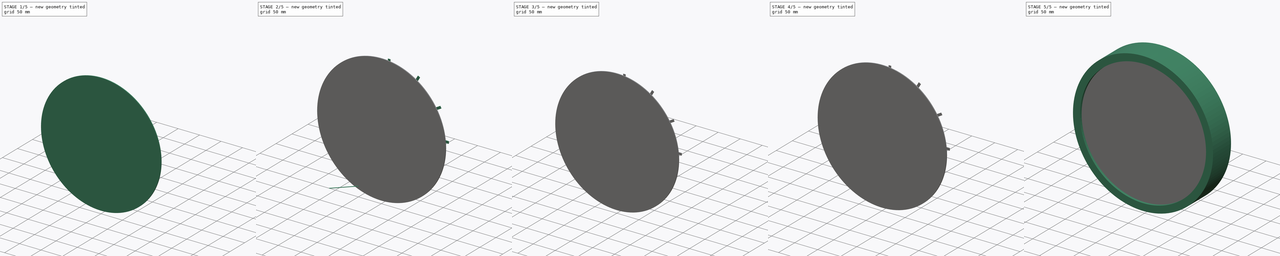
[diagram: build sequence overview — one tinted view per stage of 5, left to right]
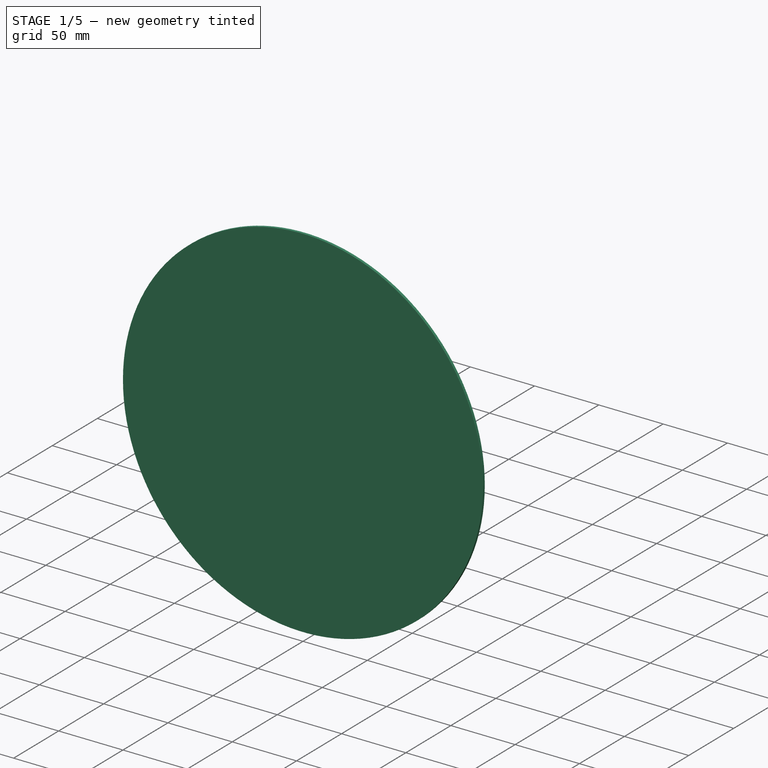
[diagram: stage 1 of 5 — iso view after this stage's code; geometry added in this stage tinted green]
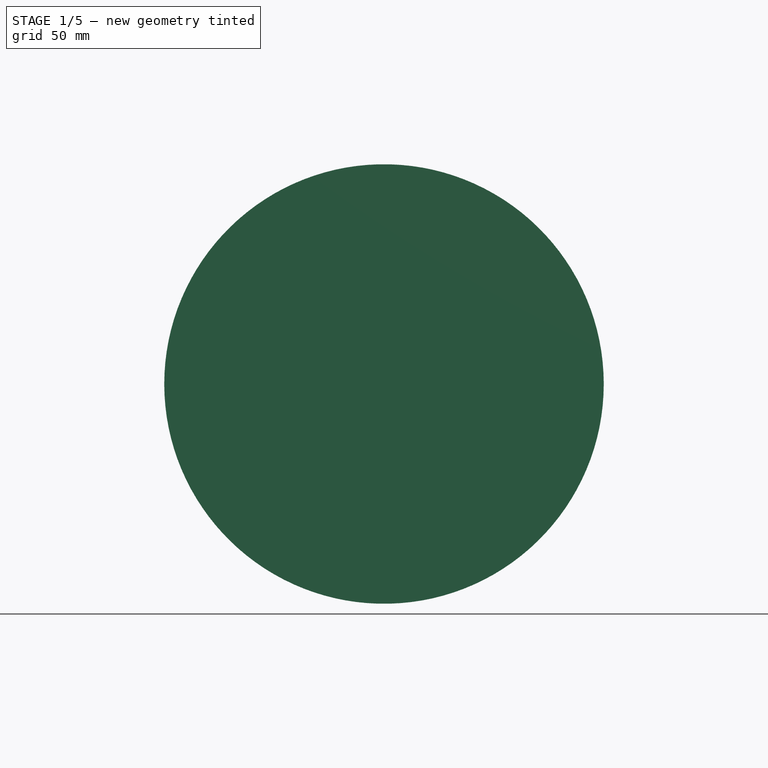
[diagram: stage 1 of 5 — front view after this stage's code; geometry added in this stage tinted green]
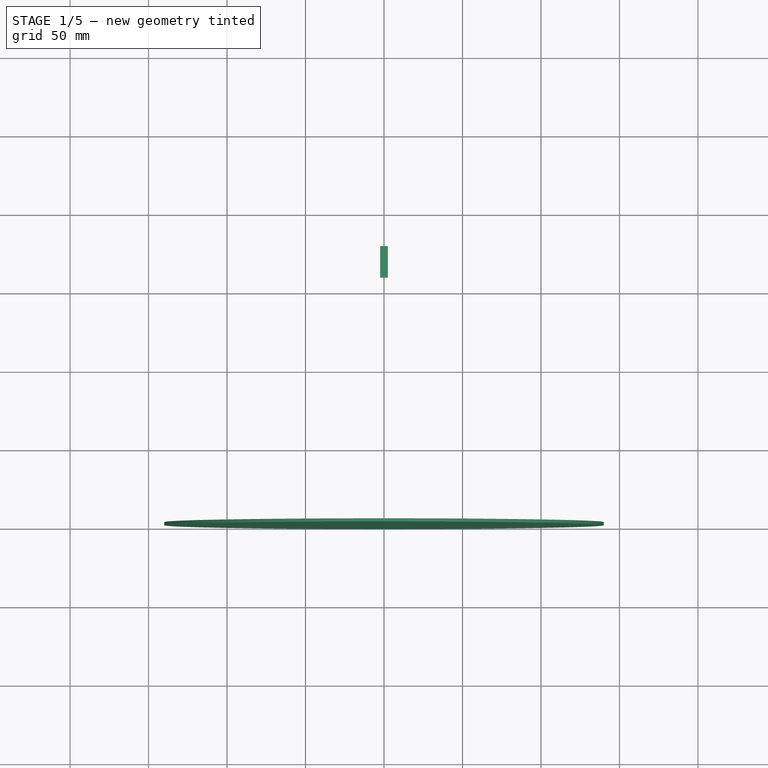
[diagram: stage 1 of 5 — top view after this stage's code; geometry added in this stage tinted green]
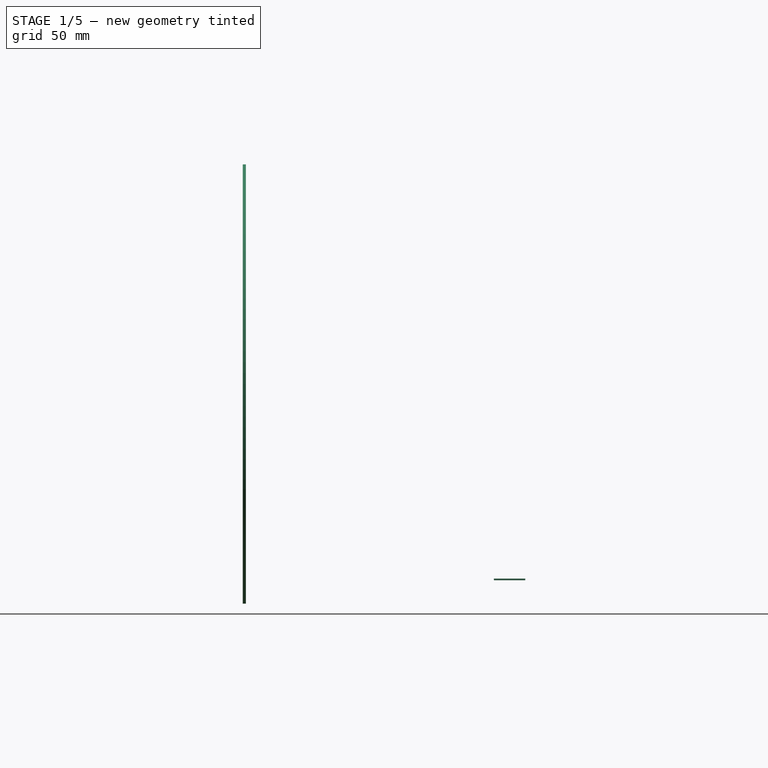
[diagram: stage 1 of 5 — right view after this stage's code; geometry added in this stage tinted green]
FCSTD DOCUMENT  (FreeCAD 1.0R39109 (Git))
Label: clock
License: All rights reserved
LicenseURL: https://en.wikipedia.org/wiki/All_rights_reserved
objects: Part::FeaturePython×13, App::Part×13, Sketcher::SketchObject×6, PartDesign::Body×6, PartDesign::ShapeBinder×5, PartDesign::Pad×5, PartDesign::Revolution×1
note: 53 computed .brp shape members not serialized (recipe doc carries the construction recipe); baked Part::Feature solids carry a one-line shape summary decoded from their .brp

FEATURE [PartDesign::Body] Body003
  AllowCompound = false
  Group = -> [CopyRevolution002,Sketch003,Pad002]
  Origin = -> Origin003
  Placement = pos=(0,0,2) rot=(0,0,1;0rad)
  Tip = -> Pad002
FEATURE [PartDesign::ShapeBinder] CopyRevolution003
  Placement = pos=(0,0,0) rot=(1,0,0;1.5708rad)
  TraceSupport = false
FEATURE [Sketcher::SketchObject] Sketch004
  ArcFitTolerance = 1e-06
  AttachmentSupport = -> [CopyRevolution003]
  FullyConstrained = true
  MakeInternals = false
  MapMode = 5
  Placement = pos=(0,1.1e-14,25) rot=(0,0,1;3.14159rad)
  sketch-geometry (4):
    g0: LineSegment StartX=-2.5 StartY=-110 StartZ=0 EndX=-2.5 EndY=-130 EndZ=0
    g1: LineSegment StartX=-2.5 StartY=-130 StartZ=0 EndX=2.5 EndY=-130 EndZ=0
    g2: LineSegment StartX=2.5 StartY=-130 StartZ=0 EndX=2.5 EndY=-110 EndZ=0
    g3: LineSegment StartX=2.5 StartY=-110 StartZ=0 EndX=-2.5 EndY=-110 EndZ=0
  constraints (11):
    c: Coincident(g0,g1)
    c: Coincident(g1,g2)
    c: Coincident(g2,g3)
    c: Coincident(g3,g0)
    c: Vertical(g0)
    c: Vertical(g2)
    c: Horizontal(g1)
    c: DistanceY(g0,g0) = 20
    c: DistanceX(g3,g3) = 5
    c: Symmetric(g0,g2,g-2)
    c: DistanceY(g0) = -110
FEATURE [PartDesign::Pad] Pad003
  Direction = (0,0,1)
  Length = 1
  Length2 = 10
  Placement = pos=(0,0,0) rot=(1,0,0;1.5708rad)
  Profile = -> Sketch004
  ReferenceAxis = -> Sketch004 [N_Axis]
  Refine = true
  Suppressed = false
  Type = 0
FEATURE [PartDesign::ShapeBinder] CopyRevolution004
  Placement = pos=(0,0,0) rot=(1,0,0;1.5708rad)
  TraceSupport = false
FEATURE [Sketcher::SketchObject] Sketch005
  ArcFitTolerance = 1e-06
  AttachmentSupport = -> [CopyRevolution004]
  FullyConstrained = true
  MakeInternals = false
  MapMode = 5
  Placement = pos=(0,2.11e-14,48) rot=(0,0,1;3.14159rad)
  sketch-geometry (1):
    g0: Circle CenterX=0 CenterY=0 CenterZ=0 NormalX=0 NormalY=0 NormalZ=1 AngleXU=0 Radius=140
  constraints (2):
    c: Coincident(g0,g-1)
    c: Radius(g0) = 140
FEATURE [PartDesign::Pad] Pad004
  Direction = (0,0,1)
  Length = 2
  Length2 = 10
  Placement = pos=(0,0,0) rot=(1,0,0;1.5708rad)
  Profile = -> Sketch005
  ReferenceAxis = -> Sketch005 [N_Axis]
  Refine = true
  Suppressed = false
  Type = 0
FEATURE [App::Part] Part010  label="second1"
  Group = -> [Clone004]
  Origin = -> Origin016
  Placement = pos=(0,0,150) rot=(1,0,0;1.5708rad)
FEATURE [App::Part] Part009  label="second_p"
  Group = -> [Part010]
  Origin = -> Origin015
  Placement = pos=(0,0,150) rot=(0,0,1;0rad)
FEATURE [Part::FeaturePython] Clone005  label="glass"  # Draft clone (typed FeaturePython)
  AttacherType = Attacher::AttachEngine3D
  Fuse = false
  Objects = -> [Body005]
  Placement = pos=(0,0,150) rot=(1,0,0;1.5708rad)
  Scale = (1,1,1)
FEATURE [Part::FeaturePython] Clone011  label="glass_clone"  # Draft clone (typed FeaturePython)
  AttacherType = Attacher::AttachEngine3D
  Fuse = false
  Objects = -> [Part011]
  Scale = (1,1,1)
FEATURE [App::Part] Part012  label="clock"
  Group = -> [Clone006,Clone007,Clone008,Clone009,Clone010,Clone011]
  Origin = -> Origin018
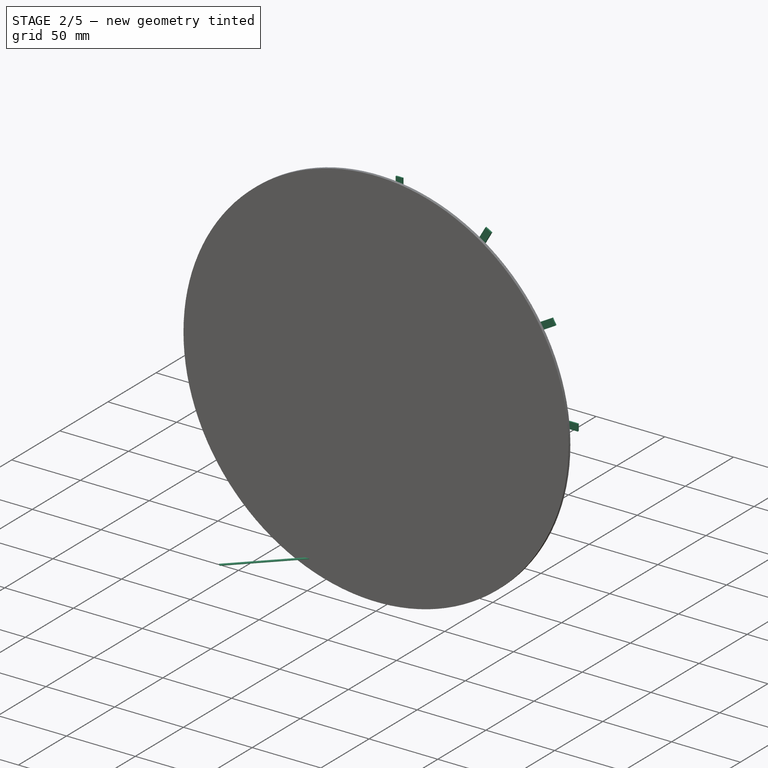
[diagram: stage 2 of 5 — iso view after this stage's code; geometry added in this stage tinted green]
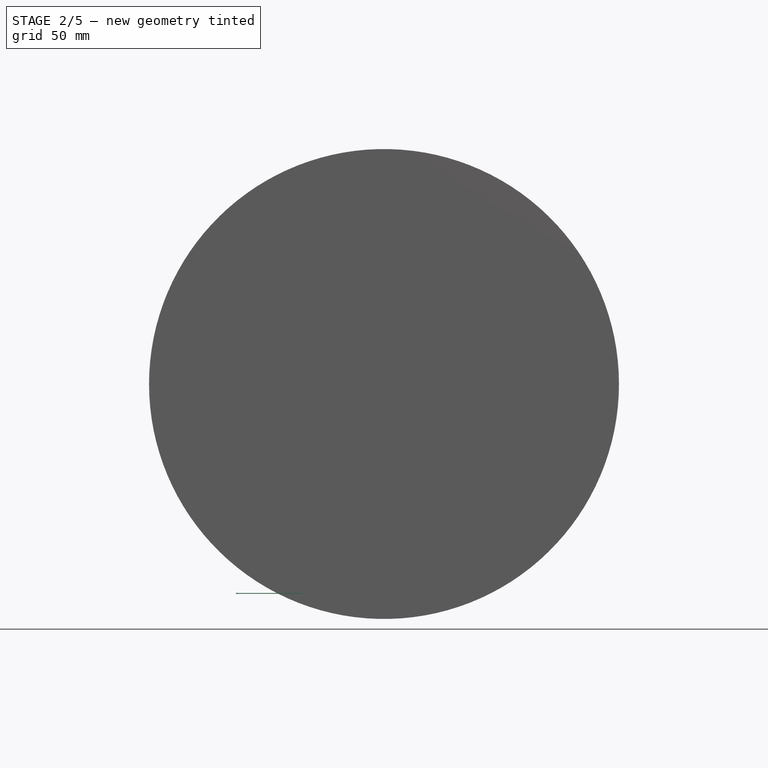
[diagram: stage 2 of 5 — front view after this stage's code; geometry added in this stage tinted green]
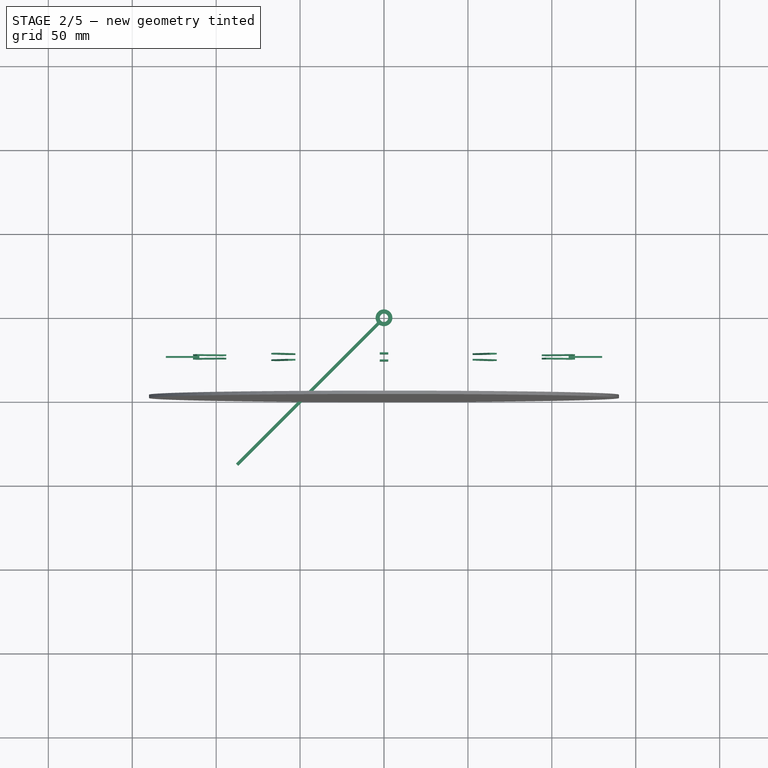
[diagram: stage 2 of 5 — top view after this stage's code; geometry added in this stage tinted green]
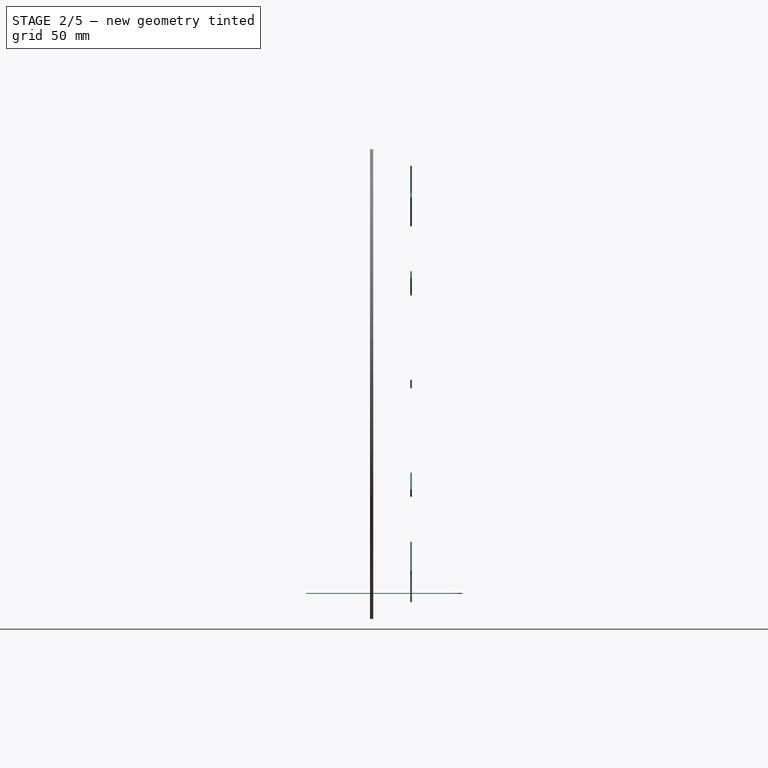
[diagram: stage 2 of 5 — right view after this stage's code; geometry added in this stage tinted green]
FEATURE [PartDesign::Body] Body002
  AllowCompound = false
  Group = -> [CopyRevolution001,Sketch002,Pad001]
  Origin = -> Origin002
  Placement = pos=(0,0,1) rot=(0,0,1;1.0472rad)
  Tip = -> Pad001
FEATURE [PartDesign::ShapeBinder] CopyRevolution002
  Placement = pos=(0,0,0) rot=(1,0,0;1.5708rad)
  TraceSupport = false
FEATURE [Sketcher::SketchObject] Sketch003
  ArcFitTolerance = 1e-06
  AttachmentSupport = -> [CopyRevolution002]
  FullyConstrained = false
  MakeInternals = false
  MapMode = 5
  Placement = pos=(0,1.1e-14,25) rot=(0,0,1;3.14159rad)
  sketch-geometry (6):
    g0: Circle CenterX=0 CenterY=0 CenterZ=0 NormalX=0 NormalY=0 NormalZ=1 AngleXU=0 Radius=2.5
    g1: ArcOfCircle CenterX=0 CenterY=0 CenterZ=0 NormalX=0 NormalY=0 NormalZ=1 AngleXU=0 Radius=5 StartAngle=0.986756 EndAngle=6.86723
    g2: LineSegment StartX=4.17121 StartY=2.75699 StartZ=0 EndX=88.2635 EndY=86.8493 EndZ=0
    g3: LineSegment StartX=88.2635 StartY=86.8493 StartZ=0 EndX=86.8493 EndY=88.2635 EndZ=0
    g4: LineSegment StartX=2.75699 StartY=4.17121 StartZ=0 EndX=86.8493 EndY=88.2635 EndZ=0
    g5: LineSegment [constr] StartX=0 StartY=0 StartZ=0 EndX=87.5564 EndY=87.5564 EndZ=0
  constraints (14):
    c: Coincident(g0,g-1)
    c: Coincident(g0,g1)
    c: Radius(g0) = 2.5
    c: Coincident(g3,g2)
    c: Coincident(g4,g3)
    c: Coincident(g5,g0)
    c: Symmetric(g3,g3,g5)
    c: Angle(g-1,g5) = 0.785398
    c: Perpendicular(g3,g4)
    c: Perpendicular(g2,g3)
    c: Distance(g3) = 2
    c: Coincident(g1,g2)
    c: Coincident(g1,g4)
    c: Radius(g1) = 5
FEATURE [PartDesign::Pad] Pad002
  Direction = (0,0,1)
  Length = 0.5
  Length2 = 10
  Placement = pos=(0,0,0) rot=(1,0,0;1.5708rad)
  Profile = -> Sketch003
  ReferenceAxis = -> Sketch003 [N_Axis]
  Refine = true
  Suppressed = false
  Type = 0
FEATURE [PartDesign::Body] Body004
  AllowCompound = false
  Group = -> [CopyRevolution003,Sketch004,Pad003]
  Origin = -> Origin004
  Tip = -> Pad003
FEATURE [Part::FeaturePython] Array  # Draft array (typed FeaturePython)
  AlwaysSyncPlacement = false
  Angle = 360
  ArrayType = 1
  Axis = (0,0,1)
  Base = -> Body004
  Center = (0,0,0)
  Count = 12
  ExpandArray = false
  Fuse = false
  IntervalAxis = (0,0,0)
  IntervalX = (100,0,0)
  IntervalY = (0,100,0)
  IntervalZ = (0,0,100)
  NumberCircles = 3
  NumberPolar = 12
  NumberX = 2
  NumberY = 2
  NumberZ = 1
  PlacementList = 12 placements: [(0,0,0),(0,0,0),(0,0,0),(0,0,0),(0,0,0),(0,0,0),(0,0,0),(0,0,0),(0,0,0),(0,0,0),(0,0,0),(0,0,0)]
  RadialDistance = 50
  ScaleList = (12) [(1,1,1),(1,1,1),(1,1,1),(1,1,1),(1,1,1),(1,1,1),(1,1,1),(1,1,1),(1,1,1),(1,1,1),(1,1,1),(1,1,1)]
  Symmetry = 1
  TangentialDistance = 25
FEATURE [App::Part] Part007  label="minute1"
  Group = -> [Clone002]
  Origin = -> Origin013
  Placement = pos=(0,0,150) rot=(1,0,0;1.5708rad)
FEATURE [App::Part] Part006  label="minute_p"
  Group = -> [Part007]
  Origin = -> Origin012
  Placement = pos=(0,0,150) rot=(0,0,1;0rad)
FEATURE [Part::FeaturePython] Clone003  label="symbol"  # Draft clone (typed FeaturePython)
  AttacherType = Attacher::AttachEngine3D
  Fuse = false
  Objects = -> [Array]
  Placement = pos=(0,0,150) rot=(1,0,0;1.5708rad)
  Scale = (1,1,1)
FEATURE [Part::FeaturePython] Clone010  label="symbol_clone"  # Draft clone (typed FeaturePython)
  AttacherType = Attacher::AttachEngine3D
  Fuse = false
  Objects = -> [Part008]
  Scale = (1,1,1)
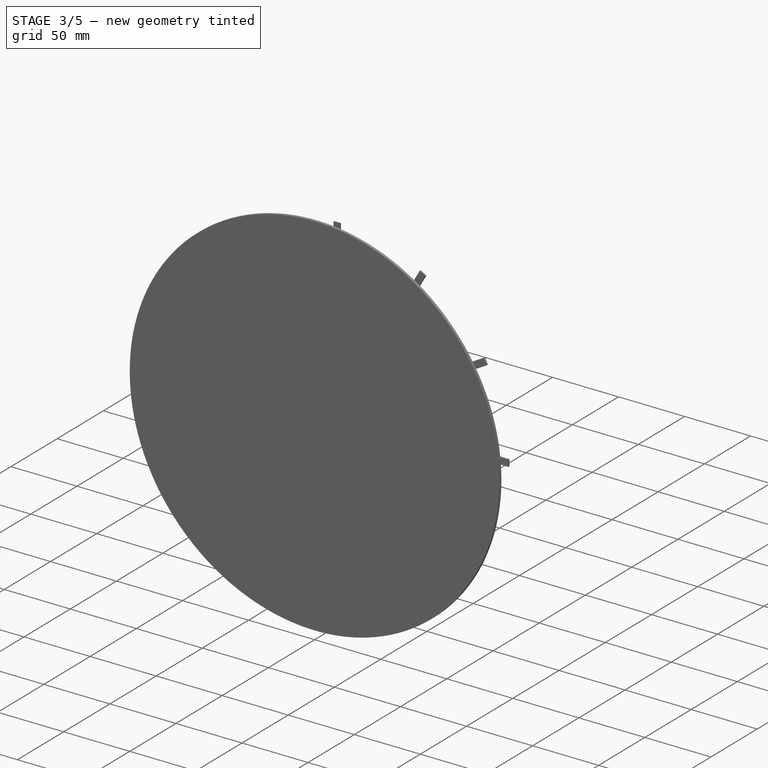
[diagram: stage 3 of 5 — iso view after this stage's code; geometry added in this stage tinted green]
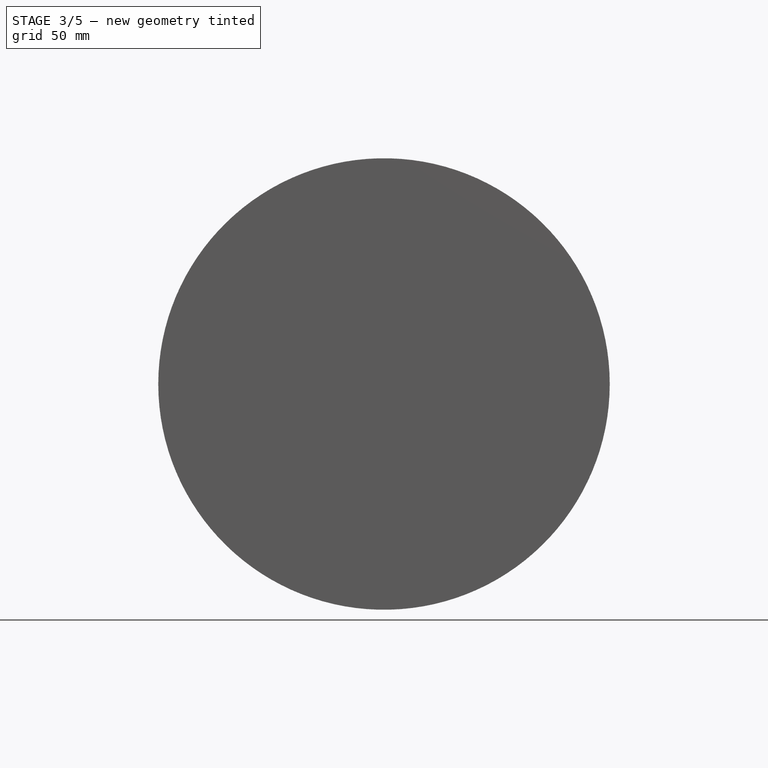
[diagram: stage 3 of 5 — front view after this stage's code; geometry added in this stage tinted green]
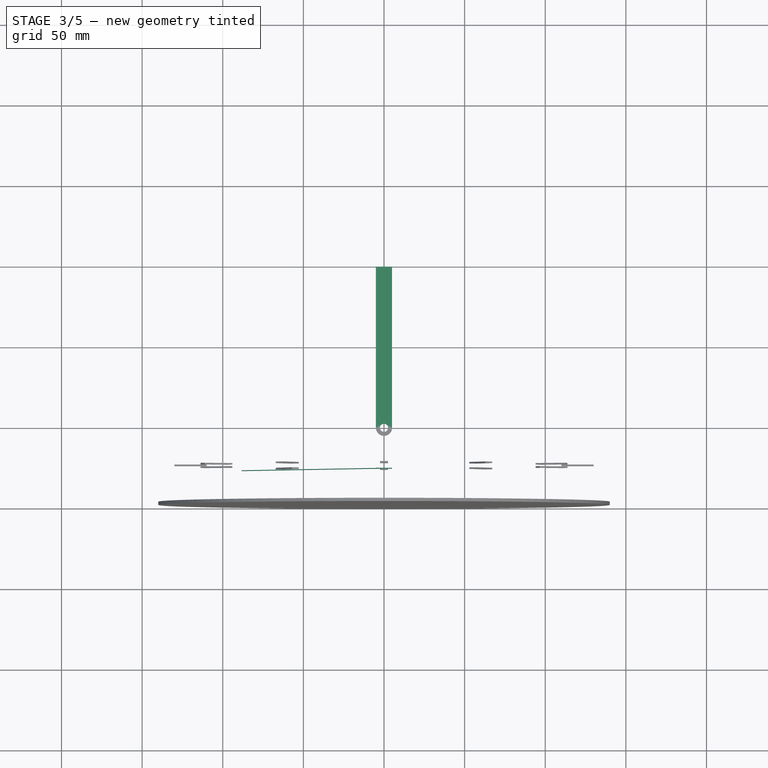
[diagram: stage 3 of 5 — top view after this stage's code; geometry added in this stage tinted green]
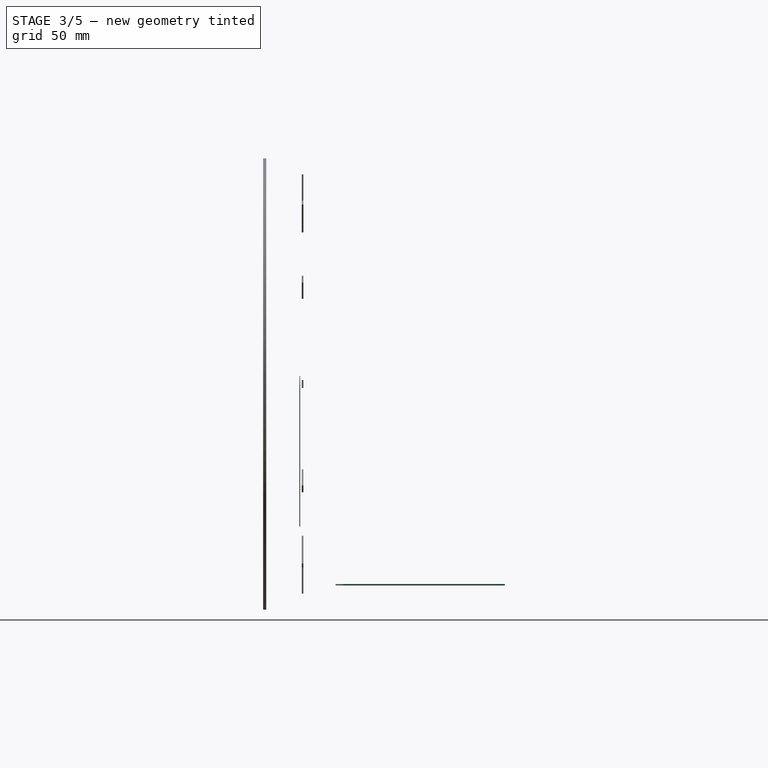
[diagram: stage 3 of 5 — right view after this stage's code; geometry added in this stage tinted green]
FEATURE [PartDesign::Body] Body
  AllowCompound = false
  Group = -> [Sketch,Revolution]
  Origin = -> Origin
  Tip = -> Revolution
FEATURE [PartDesign::ShapeBinder] CopyRevolution
  Placement = pos=(0,0,0) rot=(1,0,0;1.5708rad)
  TraceSupport = false
FEATURE [Sketcher::SketchObject] Sketch001
  ArcFitTolerance = 1e-06
  AttachmentSupport = -> [CopyRevolution]
  FullyConstrained = true
  MakeInternals = false
  MapMode = 5
  Placement = pos=(0,1.1e-14,25) rot=(0,0,1;3.14159rad)
  sketch-geometry (5):
    g0: Circle CenterX=0 CenterY=6e-16 CenterZ=0 NormalX=0 NormalY=0 NormalZ=1 AngleXU=0 Radius=2.5
    g1: ArcOfCircle CenterX=0 CenterY=6e-16 CenterZ=0 NormalX=0 NormalY=0 NormalZ=1 AngleXU=0 Radius=5 StartAngle=1e-16 EndAngle=3.14159
    g2: LineSegment StartX=5 StartY=1.2e-15 StartZ=0 EndX=5 EndY=-100 EndZ=0
    g3: LineSegment StartX=5 StartY=-100 StartZ=0 EndX=-5 EndY=-100 EndZ=0
    g4: LineSegment StartX=-5 StartY=-100 StartZ=0 EndX=-5 EndY=0 EndZ=0
  constraints (13):
    c: Coincident(g1,g0)
    c: Radius(g0) = 2.5
    c: PointOnObject(g0,g-2)
    c: Vertical(g2)
    c: Coincident(g2,g3)
    c: Horizontal(g3)
    c: Coincident(g3,g4)
    c: Vertical(g4)
    c: PointOnObject(g4,g-1)
    c: Tangent(g1,g4) = 1.5708
    c: Tangent(g1,g2) = 1.5708
    c: DistanceX(g3,g3) = 10
    c: DistanceY(g4,g4) = 100
FEATURE [PartDesign::Pad] Pad
  Direction = (0,0,1)
  Length = 1
  Length2 = 10
  Placement = pos=(0,0,0) rot=(1,0,0;1.5708rad)
  Profile = -> Sketch001
  ReferenceAxis = -> Sketch001 [N_Axis]
  Refine = true
  Suppressed = false
  Type = 0
FEATURE [App::Part] Part008  label="symbol_p"
  Group = -> [Clone003]
  Origin = -> Origin014
  Placement = pos=(0,0,150) rot=(0,0,1;0rad)
FEATURE [Part::FeaturePython] Clone004  label="second"  # Draft clone (typed FeaturePython)
  AttacherType = Attacher::AttachEngine3D
  Fuse = false
  Objects = -> [Body003]
  Placement = pos=(0,0,2) rot=(0,0,1;0rad)
  Scale = (1,1,1)
FEATURE [Part::FeaturePython] Clone009  label="second_clone"  # Draft clone (typed FeaturePython)
  AttacherType = Attacher::AttachEngine3D
  Fuse = false
  Objects = -> [Part009]
  Scale = (1,1,1)
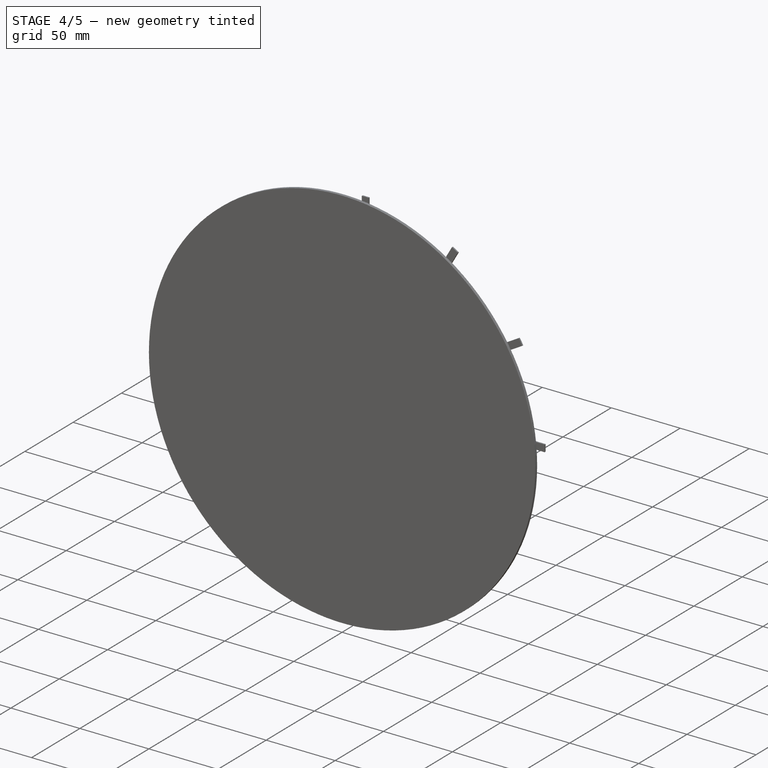
[diagram: stage 4 of 5 — iso view after this stage's code; geometry added in this stage tinted green]
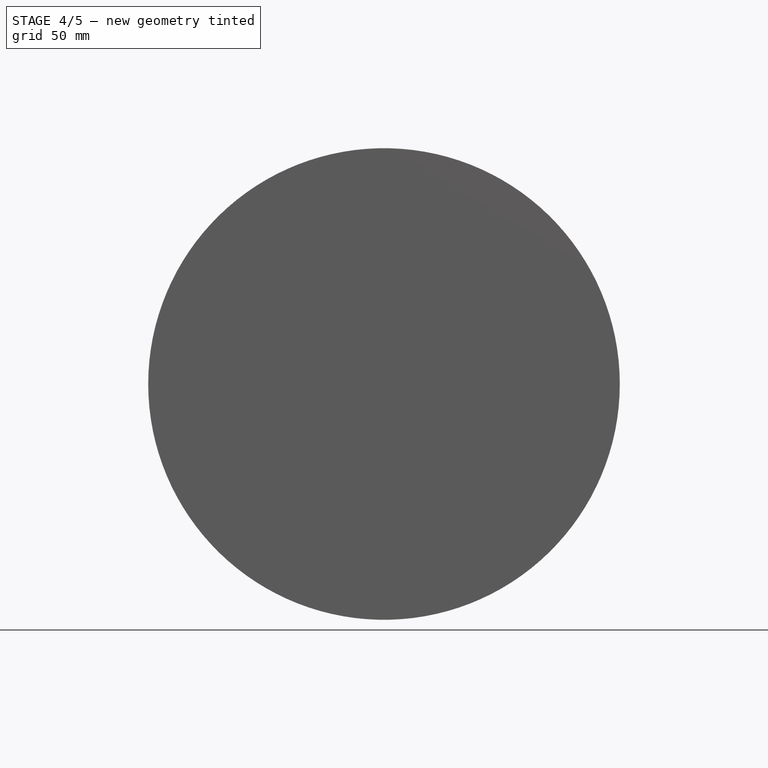
[diagram: stage 4 of 5 — front view after this stage's code; geometry added in this stage tinted green]
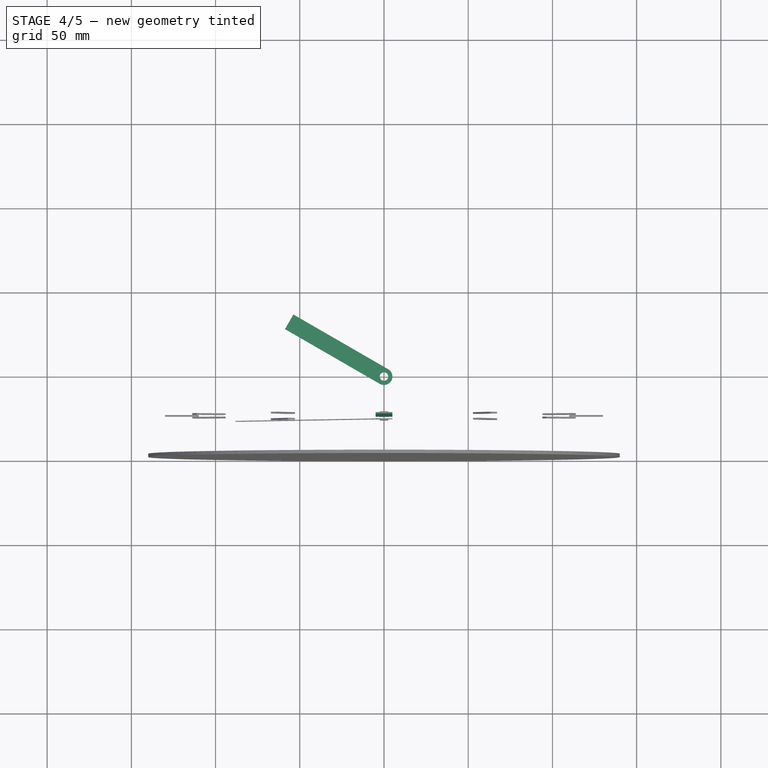
[diagram: stage 4 of 5 — top view after this stage's code; geometry added in this stage tinted green]
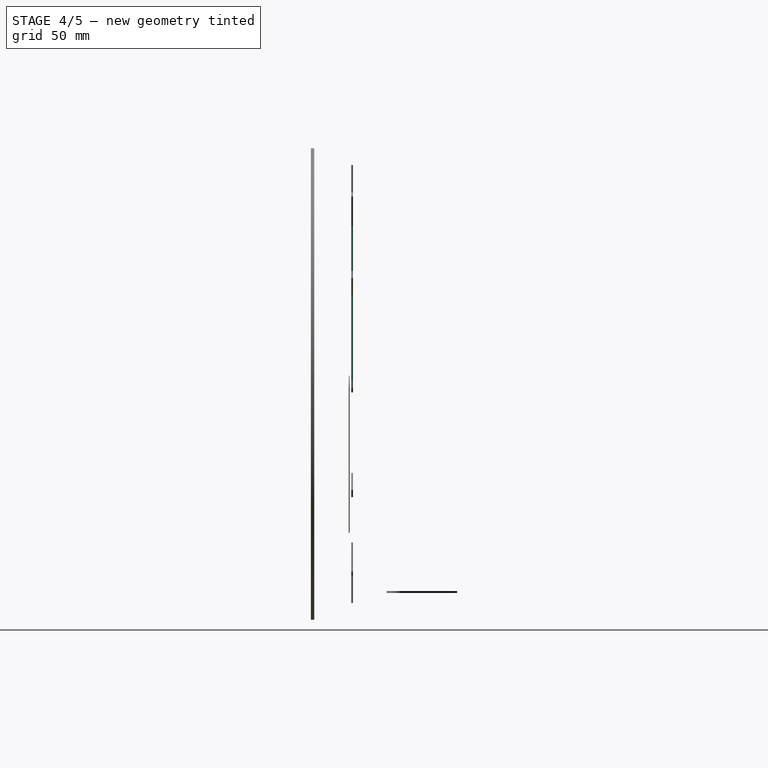
[diagram: stage 4 of 5 — right view after this stage's code; geometry added in this stage tinted green]
FEATURE [PartDesign::Body] Body001
  AllowCompound = false
  Group = -> [CopyRevolution,Sketch001,Pad]
  Origin = -> Origin001
  Tip = -> Pad
FEATURE [PartDesign::ShapeBinder] CopyRevolution001
  Placement = pos=(0,0,0) rot=(1,0,0;1.5708rad)
  TraceSupport = false
FEATURE [Sketcher::SketchObject] Sketch002
  ArcFitTolerance = 1e-06
  AttachmentSupport = -> [CopyRevolution001]
  FullyConstrained = true
  MakeInternals = false
  MapMode = 5
  Placement = pos=(0,1.1e-14,25) rot=(0,0,1;3.14159rad)
  sketch-geometry (5):
    g0: Circle CenterX=0 CenterY=0 CenterZ=0 NormalX=0 NormalY=0 NormalZ=1 AngleXU=0 Radius=2.5
    g1: ArcOfCircle CenterX=0 CenterY=0 CenterZ=0 NormalX=0 NormalY=0 NormalZ=1 AngleXU=0 Radius=5 StartAngle=0 EndAngle=3.14159
    g2: LineSegment StartX=5 StartY=0 StartZ=0 EndX=5 EndY=-65 EndZ=0
    g3: LineSegment StartX=5 StartY=-65 StartZ=0 EndX=-5 EndY=-65 EndZ=0
    g4: LineSegment StartX=-5 StartY=-65 StartZ=0 EndX=-5 EndY=0 EndZ=0
  constraints (12):
    c: Coincident(g1,g0)
    c: Radius(g0) = 2.5
    c: Coincident(g0,g-1)
    c: PointOnObject(g2,g-1)
    c: Coincident(g2,g3)
    c: Horizontal(g3)
    c: Coincident(g3,g4)
    c: PointOnObject(g4,g-1)
    c: Tangent(g1,g4) = 1.5708
    c: Tangent(g1,g2) = 1.5708
    c: DistanceX(g3,g3) = 10
    c: DistanceY(g4,g4) = 65
FEATURE [PartDesign::Pad] Pad001
  Direction = (0,0,1)
  Length = 1
  Length2 = 10
  Placement = pos=(0,0,0) rot=(1,0,0;1.5708rad)
  Profile = -> Sketch002
  ReferenceAxis = -> Sketch002 [N_Axis]
  Refine = true
  Suppressed = false
  Type = 0
FEATURE [App::Part] Part003  label="around_p"
  Group = -> [Clone]
  Origin = -> Origin009
  Placement = pos=(0,0,150) rot=(0,0,1;0rad)
FEATURE [Part::FeaturePython] Clone001  label="hour"  # Draft clone (typed FeaturePython)
  AttacherType = Attacher::AttachEngine3D
  Fuse = false
  Objects = -> [Body002]
  Placement = pos=(0,0,1) rot=(0,0,1;1.0472rad)
  Scale = (1,1,1)
FEATURE [App::Part] Part005  label="hour1"
  Group = -> [Clone001]
  Origin = -> Origin011
  Placement = pos=(0,0,150) rot=(1,0,0;1.5708rad)
FEATURE [App::Part] Part004  label="hour_p"
  Group = -> [Part005]
  Origin = -> Origin010
  Placement = pos=(0,0,150) rot=(0,0,1;0rad)
FEATURE [Part::FeaturePython] Clone002  label="minute"  # Draft clone (typed FeaturePython)
  AttacherType = Attacher::AttachEngine3D
  Fuse = false
  Objects = -> [Body001]
  Scale = (1,1,1)
FEATURE [Part::FeaturePython] Clone008  label="minute_clone"  # Draft clone (typed FeaturePython)
  AttacherType = Attacher::AttachEngine3D
  Fuse = false
  Objects = -> [Part006]
  Scale = (1,1,1)
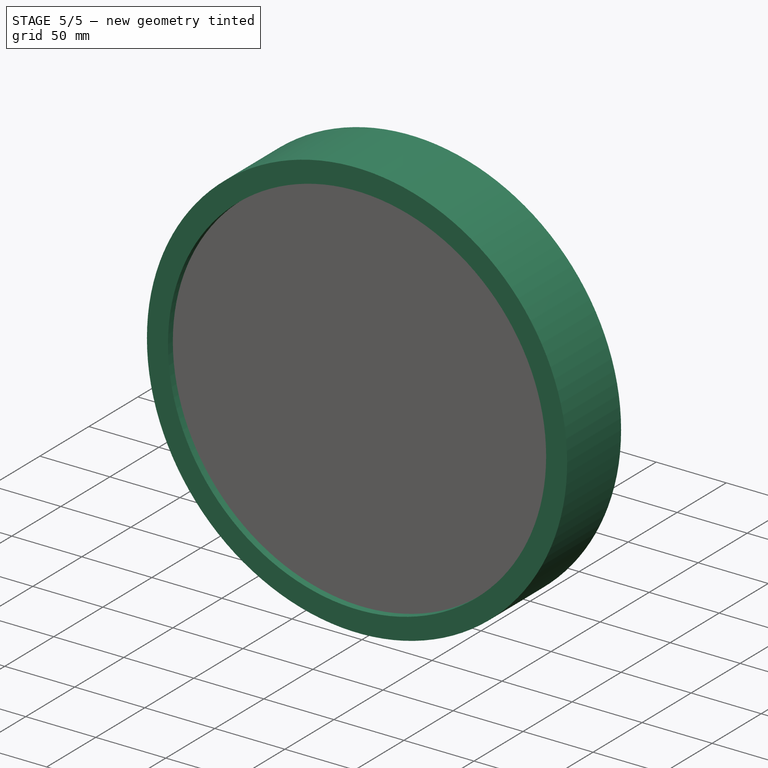
[diagram: stage 5 of 5 — iso view after this stage's code; geometry added in this stage tinted green]
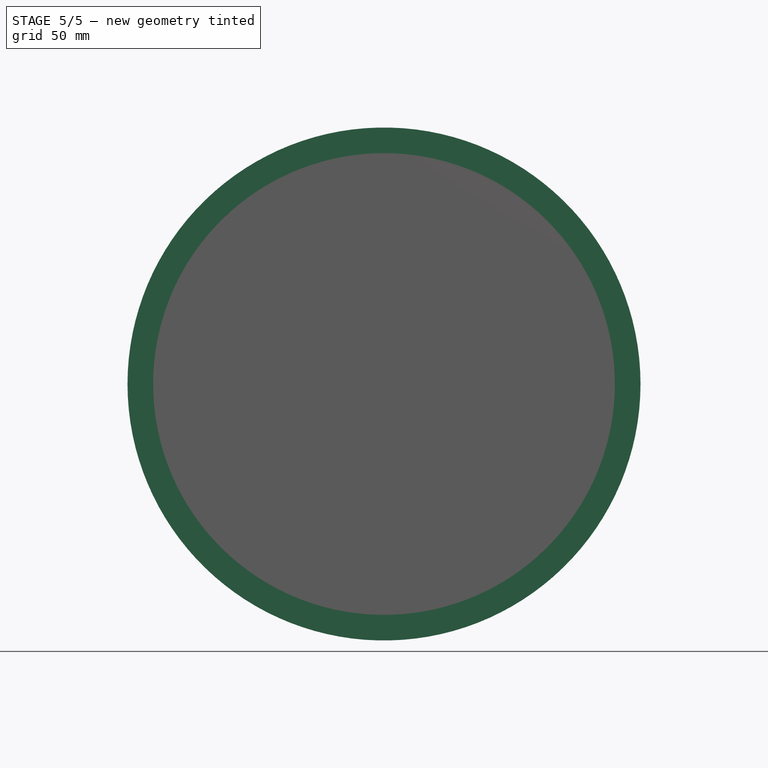
[diagram: stage 5 of 5 — front view after this stage's code; geometry added in this stage tinted green]
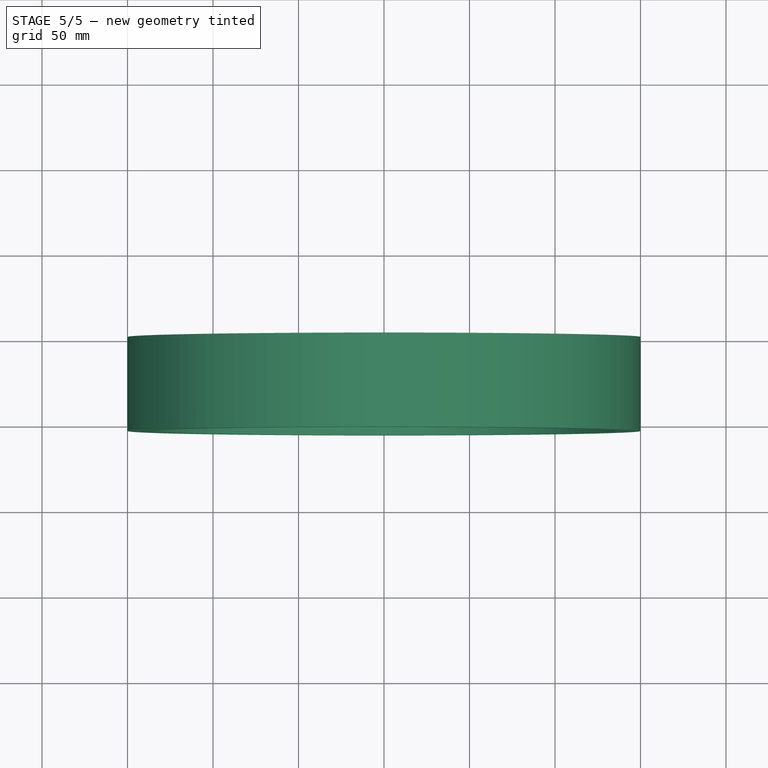
[diagram: stage 5 of 5 — top view after this stage's code; geometry added in this stage tinted green]
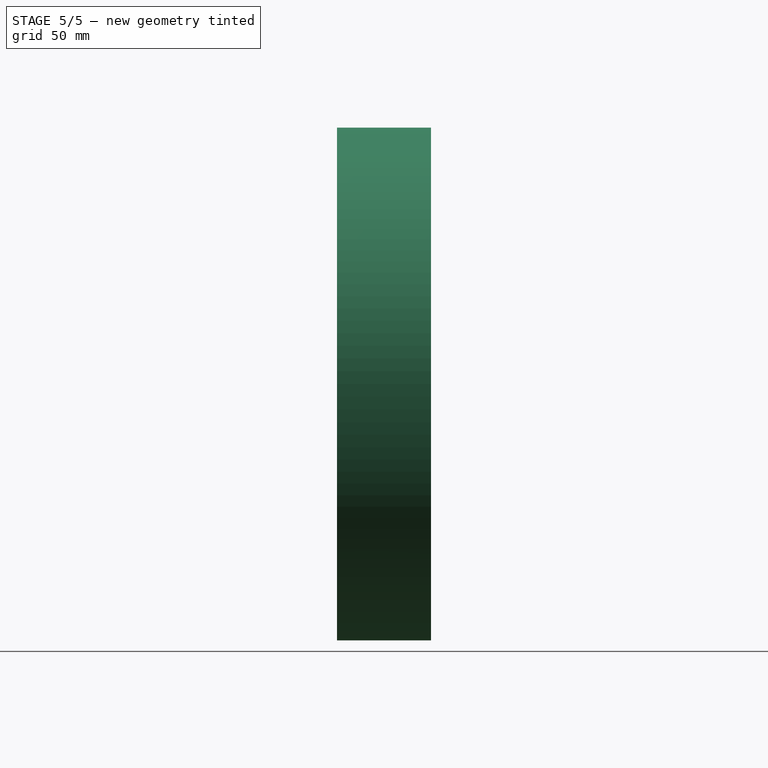
[diagram: stage 5 of 5 — right view after this stage's code; geometry added in this stage tinted green]
FEATURE [Sketcher::SketchObject] Sketch
  ArcFitTolerance = 1e-06
  AttachmentSupport = -> [XZ_Plane]
  FullyConstrained = true
  MakeInternals = false
  MapMode = 5
  Placement = pos=(0,0,0) rot=(1,0,0;1.5708rad)
  sketch-geometry (12):
    g0: LineSegment StartX=0 StartY=0 StartZ=0 EndX=150 EndY=0 EndZ=0
    g1: LineSegment StartX=150 StartY=0 StartZ=0 EndX=150 EndY=55 EndZ=0
    g2: LineSegment StartX=150 StartY=55 StartZ=0 EndX=135 EndY=55 EndZ=0
    g3: LineSegment StartX=135 StartY=55 StartZ=0 EndX=135 EndY=50 EndZ=0
    g4: LineSegment StartX=135 StartY=50 StartZ=0 EndX=140 EndY=50 EndZ=0
    g5: LineSegment StartX=140 StartY=50 StartZ=0 EndX=140 EndY=48 EndZ=0
    g6: LineSegment StartX=140 StartY=48 StartZ=0 EndX=135 EndY=48 EndZ=0
    g7: LineSegment StartX=135 StartY=48 StartZ=0 EndX=135 EndY=25 EndZ=0
    g8: LineSegment StartX=135 StartY=25 StartZ=0 EndX=2.5 EndY=25 EndZ=0
    g9: LineSegment StartX=2.5 StartY=25 StartZ=0 EndX=2.5 EndY=28 EndZ=0
    g10: LineSegment StartX=2.5 StartY=28 StartZ=0 EndX=0 EndY=28 EndZ=0
    g11: LineSegment StartX=0 StartY=28 StartZ=0 EndX=0 EndY=0 EndZ=0
  constraints (35):
    c: Coincident(g-1,g0)
    c: PointOnObject(g0,g-1)
    c: Coincident(g0,g1)
    c: Vertical(g1)
    c: Coincident(g1,g2)
    c: Horizontal(g2)
    c: Coincident(g2,g3)
    c: Vertical(g3)
    c: Coincident(g3,g4)
    c: Horizontal(g4)
    c: Coincident(g4,g5)
    c: Vertical(g5)
    c: Coincident(g5,g6)
    c: Horizontal(g6)
    c: Coincident(g6,g7)
    c: Vertical(g7)
    c: Coincident(g7,g8)
    c: Horizontal(g8)
    c: Coincident(g8,g9)
    c: Vertical(g9)
    c: Coincident(g9,g10)
    c: PointOnObject(g10,g-2)
    c: Horizontal(g10)
    c: Coincident(g10,g11)
    c: Coincident(g11,g0)
    c: DistanceX(g0,g0) = 150
    c: DistanceY(g1,g1) = 55
    c: DistanceX(g2,g2) = 15
    c: DistanceY(g3,g3) = 5
    c: DistanceX(g4,g4) = 5
    c: Equal(g4,g6)
    c: DistanceY(g5,g5) = 2
    c: DistanceY(g7,g2) = 30
    c: DistanceY(g9,g9) = 3
    c: DistanceX(g10,g10) = 2.5
FEATURE [PartDesign::Revolution] Revolution
  Angle = 360
  Angle2 = 60
  Axis = (0,2e-16,1)
  Base = (0,0,0)
  Placement = pos=(0,0,0) rot=(1,0,0;1.5708rad)
  Profile = -> Sketch
  ReferenceAxis = -> Sketch [V_Axis]
  Refine = true
  Reversed = true
  Suppressed = false
  Type = 0
FEATURE [PartDesign::Body] Body005
  AllowCompound = false
  Group = -> [CopyRevolution004,Sketch005,Pad004]
  Origin = -> Origin005
  Tip = -> Pad004
FEATURE [App::Part] Part  label="clock1"
  Group = -> [Body,Body001,Body002,Body003,Array,Body005]
  Origin = -> Origin006
  Placement = pos=(0,0,0) rot=(1,0,0;1.5708rad)
FEATURE [App::Part] Part001  label="clock2"
  Group = -> [Part]
  Origin = -> Origin007
  Placement = pos=(0,0,150) rot=(0,0,1;0rad)
FEATURE [App::Part] Part002  label="clock3"
  Group = -> [Part001]
  Origin = -> Origin008
  Placement = pos=(0,0,150) rot=(0,0,1;0rad)
FEATURE [Part::FeaturePython] Clone  label="around"  # Draft clone (typed FeaturePython)
  AttacherType = Attacher::AttachEngine3D
  Fuse = false
  Objects = -> [Body]
  Placement = pos=(0,0,150) rot=(1,0,0;1.5708rad)
  Scale = (1,1,1)
FEATURE [App::Part] Part011  label="glass_p"
  Group = -> [Clone005]
  Origin = -> Origin017
  Placement = pos=(0,0,150) rot=(0,0,1;0rad)
FEATURE [Part::FeaturePython] Clone006  label="around_clone"  # Draft clone (typed FeaturePython)
  AttacherType = Attacher::AttachEngine3D
  Fuse = false
  Objects = -> [Part003]
  Scale = (1,1,1)
FEATURE [Part::FeaturePython] Clone007  label="hour_clone"  # Draft clone (typed FeaturePython)
  AttacherType = Attacher::AttachEngine3D
  Fuse = false
  Objects = -> [Part004]
  Scale = (1,1,1)
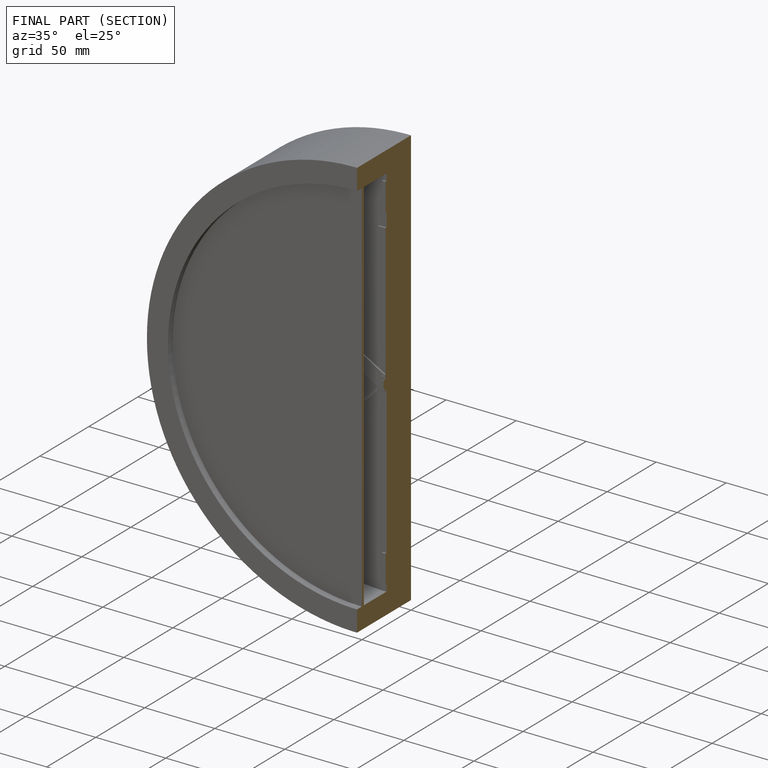
[diagram: finished part — half-section view (interior)]
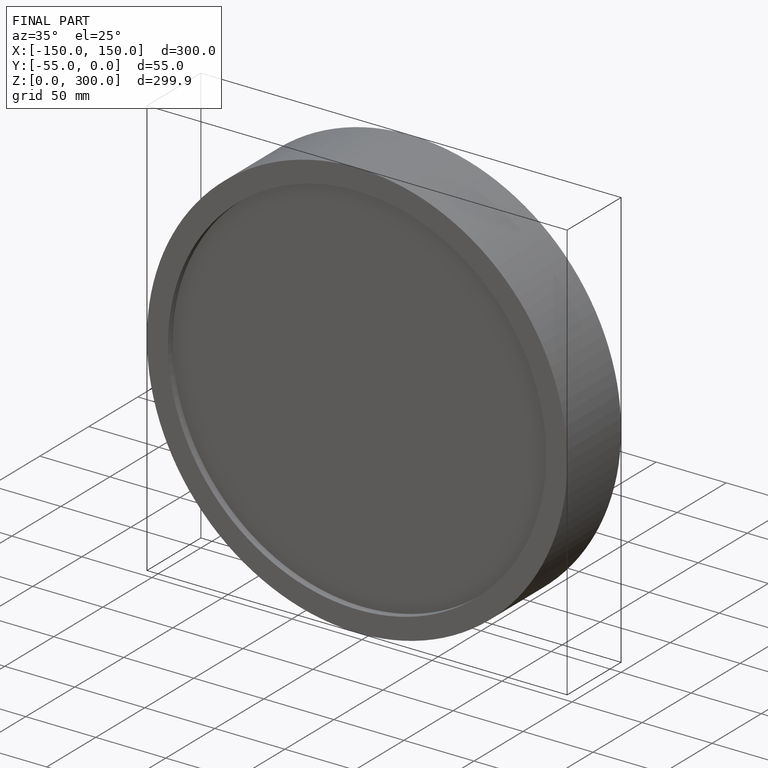
[diagram: finished part — iso view with bounding-box wireframe]
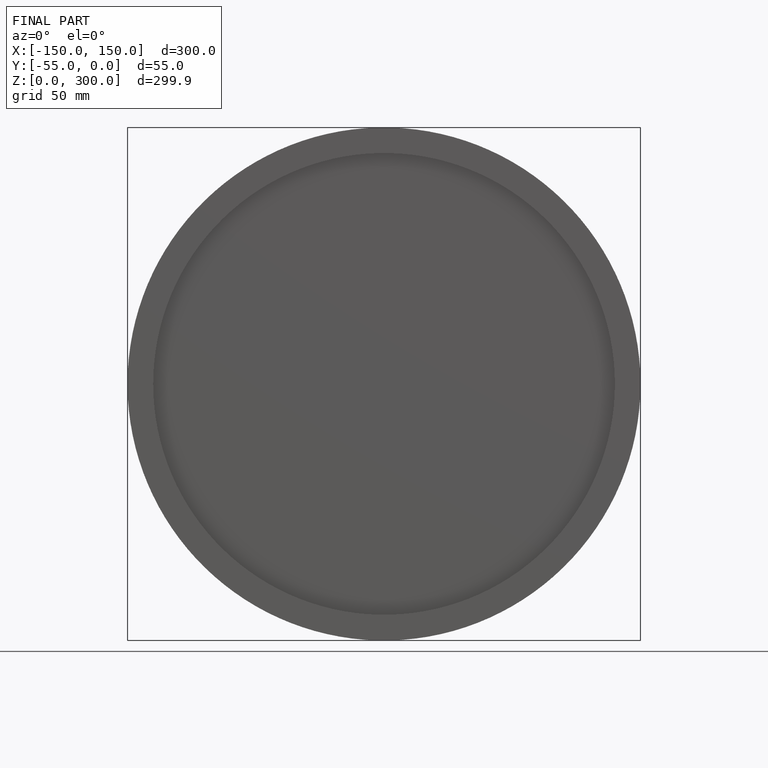
[diagram: finished part — front view with bounding-box wireframe]
